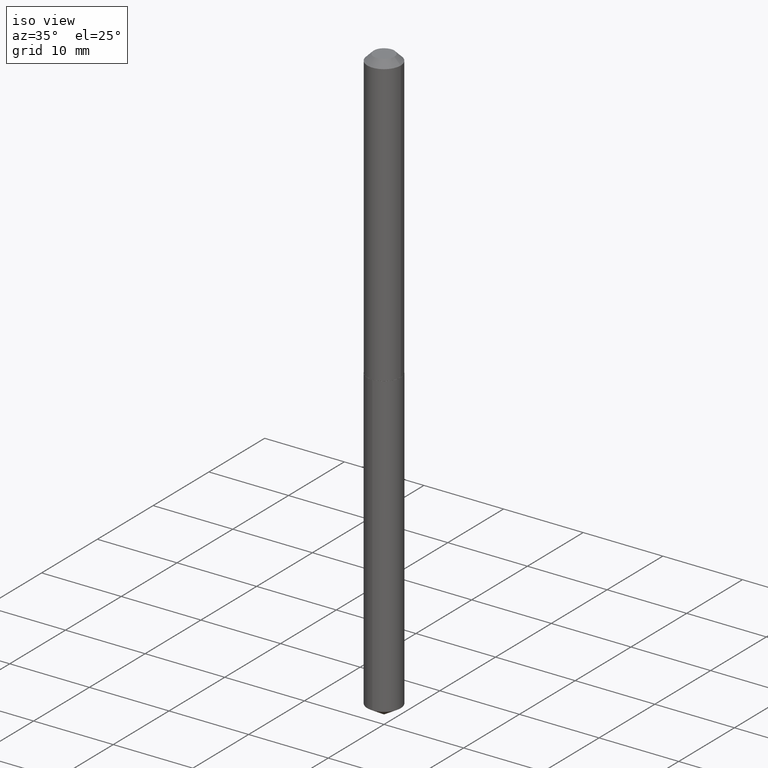
[diagram: clean part render]
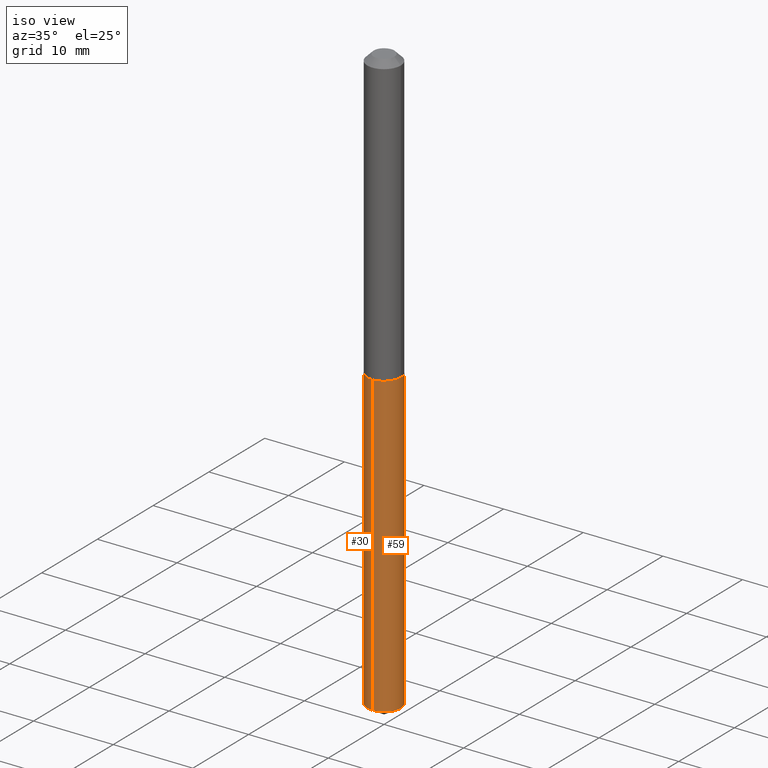
[diagram: same view with one multi-face feature highlighted, each face labeled with its STEP entity id]
A machine part, iso view. The highlighted faces form ONE feature: a constant-radius fillet chain: 2 tangent blend faces with common blend radius 2.1006 mm. The faces share edges in the B-rep.
Their STEP definitions:
[1] entity #30 (Cylinder):
#20 = LINE ( 'NONE', #348, #126 ) ;
#30 = ADVANCED_FACE ( 'NONE', ( #143 ), #262, .T. ) ;
#40 = AXIS2_PLACEMENT_3D ( 'NONE', #229, #231, #284 ) ;
#55 = DIRECTION ( 'NONE',  ( -6.982962677686265922E-15, -1.000000000000000000, 6.606645692053841341E-15 ) ) ;
#65 = EDGE_CURVE ( 'NONE', #241, #247, #20, .T. ) ;
#79 = ORIENTED_EDGE ( 'NONE', *, *, #65, .T. ) ;
#89 = LINE ( 'NONE', #356, #264 ) ;
#99 = ORIENTED_EDGE ( 'NONE', *, *, #332, .F. ) ;
#126 = VECTOR ( 'NONE', #260, 39.37007874015748143 ) ;
#132 = EDGE_CURVE ( 'NONE', #377, #241, #329, .T. ) ;
#133 = CARTESIAN_POINT ( 'NONE',  ( 5.876188424736740181E-16, 0.08269999999999502749, -1.425300000000000011 ) ) ;
#142 = AXIS2_PLACEMENT_3D ( 'NONE', #299, #327, #55 ) ;
#143 = FACE_OUTER_BOUND ( 'NONE', #276, .T. ) ;
#158 = AXIS2_PLACEMENT_3D ( 'NONE', #159, #213, #334 ) ;
#159 = CARTESIAN_POINT ( 'NONE',  ( 3.485526689455674098E-29, -4.976408352253134499E-15, -1.425299999999999789 ) ) ;
#205 = DIRECTION ( 'NONE',  ( -2.445501888859644537E-29, 3.491433962570301404E-15, 1.000000000000000000 ) ) ;
#213 = DIRECTION ( 'NONE',  ( -2.445501888859644537E-29, 3.491433962570301404E-15, 1.000000000000000000 ) ) ;
#228 = EDGE_CURVE ( 'NONE', #377, #291, #89, .T. ) ;
#229 = CARTESIAN_POINT ( 'NONE',  ( 3.485526689455674098E-29, -4.976408352253134499E-15, -1.425299999999999789 ) ) ;
#231 = DIRECTION ( 'NONE',  ( -2.445501888859644537E-29, 3.491433962570301404E-15, 1.000000000000000000 ) ) ;
#241 = VERTEX_POINT ( 'NONE', #298 ) ;
#247 = VERTEX_POINT ( 'NONE', #295 ) ;
#249 = ORIENTED_EDGE ( 'NONE', *, *, #228, .F. ) ;
#260 = DIRECTION ( 'NONE',  ( -2.445501888859644537E-29, 3.491433962570301404E-15, 1.000000000000000000 ) ) ;
#262 = CYLINDRICAL_SURFACE ( 'NONE', #40, 0.08269999999999999574 ) ;
#264 = VECTOR ( 'NONE', #205, 39.37007874015748143 ) ;
#272 = ORIENTED_EDGE ( 'NONE', *, *, #132, .T. ) ;
#276 = EDGE_LOOP ( 'NONE', ( #249, #272, #79, #99 ) ) ;
#279 = CARTESIAN_POINT ( 'NONE',  ( 5.876188424736738209E-16, 0.08269999999998987883, -2.903108826806422016 ) ) ;
#284 = DIRECTION ( 'NONE',  ( -6.982962677686265922E-15, -1.000000000000000000, 3.303322846026920670E-15 ) ) ;
#291 = VERTEX_POINT ( 'NONE', #133 ) ;
#295 = CARTESIAN_POINT ( 'NONE',  ( -5.774910134446193783E-16, -0.08270000000000496398, -1.425299999999999345 ) ) ;
#298 = CARTESIAN_POINT ( 'NONE',  ( -5.774910134445832879E-16, -0.08270000000001015428, -2.903108826806421128 ) ) ;
#299 = CARTESIAN_POINT ( 'NONE',  ( 7.099510966784234731E-29, -1.013608028035124857E-14, -2.903108826806421572 ) ) ;
#327 = DIRECTION ( 'NONE',  ( -2.445501888859644537E-29, 3.491433962570301404E-15, 1.000000000000000000 ) ) ;
#329 = CIRCLE ( 'NONE', #142, 0.08269999999999999574 ) ;
#332 = EDGE_CURVE ( 'NONE', #291, #247, #345, .T. ) ;
#334 = DIRECTION ( 'NONE',  ( -6.982962677686265922E-15, -1.000000000000000000, 3.303322846026920670E-15 ) ) ;
#345 = CIRCLE ( 'NONE', #158, 0.08269999999999999574 ) ;
#348 = CARTESIAN_POINT ( 'NONE',  ( -5.774910134446193783E-16, -0.08270000000000496398, -1.425299999999999345 ) ) ;
#356 = CARTESIAN_POINT ( 'NONE',  ( 5.876188424736375333E-16, 0.08269999999999502749, -1.425300000000000011 ) ) ;
#377 = VERTEX_POINT ( 'NONE', #279 ) ;
[2] entity #59 (Cylinder):
#20 = LINE ( 'NONE', #348, #126 ) ;
#35 = DIRECTION ( 'NONE',  ( -2.445501888859644537E-29, 3.491433962570301404E-15, 1.000000000000000000 ) ) ;
#37 = ORIENTED_EDGE ( 'NONE', *, *, #228, .T. ) ;
#47 = CIRCLE ( 'NONE', #78, 0.08269999999999999574 ) ;
#52 = ORIENTED_EDGE ( 'NONE', *, *, #201, .F. ) ;
#53 = CIRCLE ( 'NONE', #97, 0.08269999999999999574 ) ;
#58 = CARTESIAN_POINT ( 'NONE',  ( 3.485526689455674098E-29, -4.976408352253134499E-15, -1.425299999999999789 ) ) ;
#59 = ADVANCED_FACE ( 'NONE', ( #170 ), #256, .T. ) ;
#65 = EDGE_CURVE ( 'NONE', #241, #247, #20, .T. ) ;
#78 = AXIS2_PLACEMENT_3D ( 'NONE', #58, #35, #120 ) ;
#86 = DIRECTION ( 'NONE',  ( -6.982962677686265922E-15, -1.000000000000000000, 3.303322846026920670E-15 ) ) ;
#89 = LINE ( 'NONE', #356, #264 ) ;
#97 = AXIS2_PLACEMENT_3D ( 'NONE', #208, #119, #322 ) ;
#110 = DIRECTION ( 'NONE',  ( -2.445501888859644537E-29, 3.491433962570301404E-15, 1.000000000000000000 ) ) ;
#119 = DIRECTION ( 'NONE',  ( -2.445501888859644537E-29, 3.491433962570301404E-15, 1.000000000000000000 ) ) ;
#120 = DIRECTION ( 'NONE',  ( -6.982962677686265922E-15, -1.000000000000000000, 3.303322846026920670E-15 ) ) ;
#125 = ORIENTED_EDGE ( 'NONE', *, *, #65, .F. ) ;
#126 = VECTOR ( 'NONE', #260, 39.37007874015748143 ) ;
#131 = EDGE_LOOP ( 'NONE', ( #280, #37, #52, #125 ) ) ;
#133 = CARTESIAN_POINT ( 'NONE',  ( 5.876188424736740181E-16, 0.08269999999999502749, -1.425300000000000011 ) ) ;
#170 = FACE_OUTER_BOUND ( 'NONE', #131, .T. ) ;
#201 = EDGE_CURVE ( 'NONE', #247, #291, #47, .T. ) ;
#205 = DIRECTION ( 'NONE',  ( -2.445501888859644537E-29, 3.491433962570301404E-15, 1.000000000000000000 ) ) ;
#208 = CARTESIAN_POINT ( 'NONE',  ( 7.099510966784234731E-29, -1.013608028035124857E-14, -2.903108826806421572 ) ) ;
#228 = EDGE_CURVE ( 'NONE', #377, #291, #89, .T. ) ;
#238 = EDGE_CURVE ( 'NONE', #241, #377, #53, .T. ) ;
#241 = VERTEX_POINT ( 'NONE', #298 ) ;
#247 = VERTEX_POINT ( 'NONE', #295 ) ;
#256 = CYLINDRICAL_SURFACE ( 'NONE', #372, 0.08269999999999999574 ) ;
#260 = DIRECTION ( 'NONE',  ( -2.445501888859644537E-29, 3.491433962570301404E-15, 1.000000000000000000 ) ) ;
#264 = VECTOR ( 'NONE', #205, 39.37007874015748143 ) ;
#279 = CARTESIAN_POINT ( 'NONE',  ( 5.876188424736738209E-16, 0.08269999999998987883, -2.903108826806422016 ) ) ;
#280 = ORIENTED_EDGE ( 'NONE', *, *, #238, .T. ) ;
#291 = VERTEX_POINT ( 'NONE', #133 ) ;
#295 = CARTESIAN_POINT ( 'NONE',  ( -5.774910134446193783E-16, -0.08270000000000496398, -1.425299999999999345 ) ) ;
#298 = CARTESIAN_POINT ( 'NONE',  ( -5.774910134445832879E-16, -0.08270000000001015428, -2.903108826806421128 ) ) ;
#322 = DIRECTION ( 'NONE',  ( -6.982962677686265922E-15, -1.000000000000000000, 6.606645692053841341E-15 ) ) ;
#348 = CARTESIAN_POINT ( 'NONE',  ( -5.774910134446193783E-16, -0.08270000000000496398, -1.425299999999999345 ) ) ;
#356 = CARTESIAN_POINT ( 'NONE',  ( 5.876188424736375333E-16, 0.08269999999999502749, -1.425300000000000011 ) ) ;
#372 = AXIS2_PLACEMENT_3D ( 'NONE', #380, #110, #86 ) ;
#377 = VERTEX_POINT ( 'NONE', #279 ) ;
#380 = CARTESIAN_POINT ( 'NONE',  ( 3.485526689455674098E-29, -4.976408352253134499E-15, -1.425299999999999789 ) ) ;